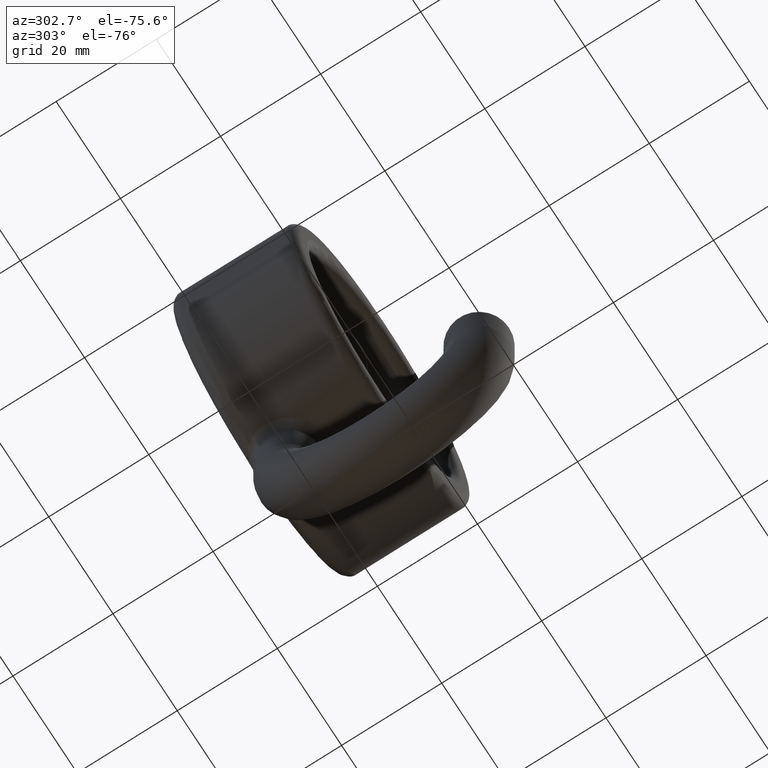
[diagram: clean part render]
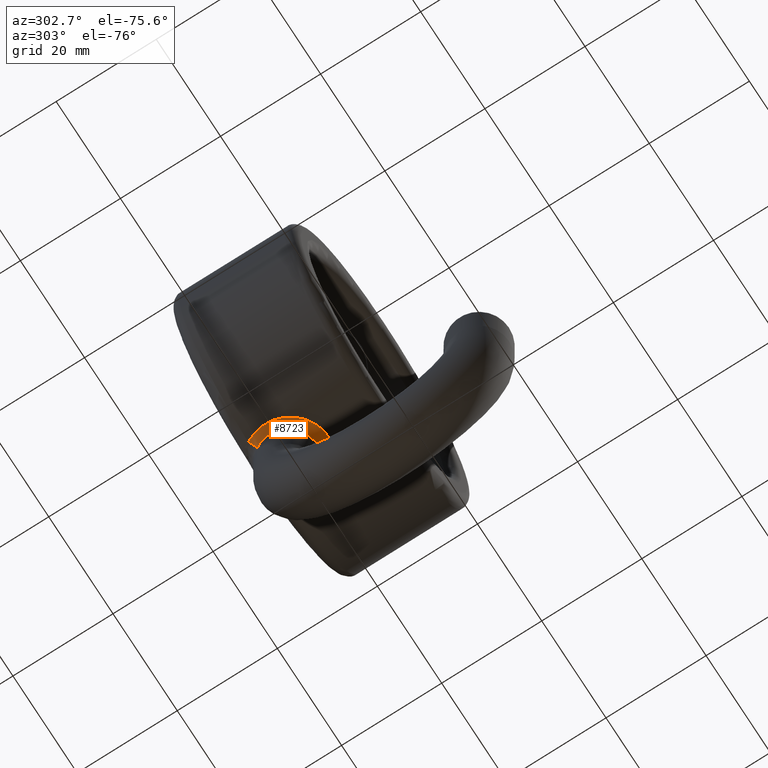
[diagram: same view with one face highlighted and labeled with its STEP entity id]
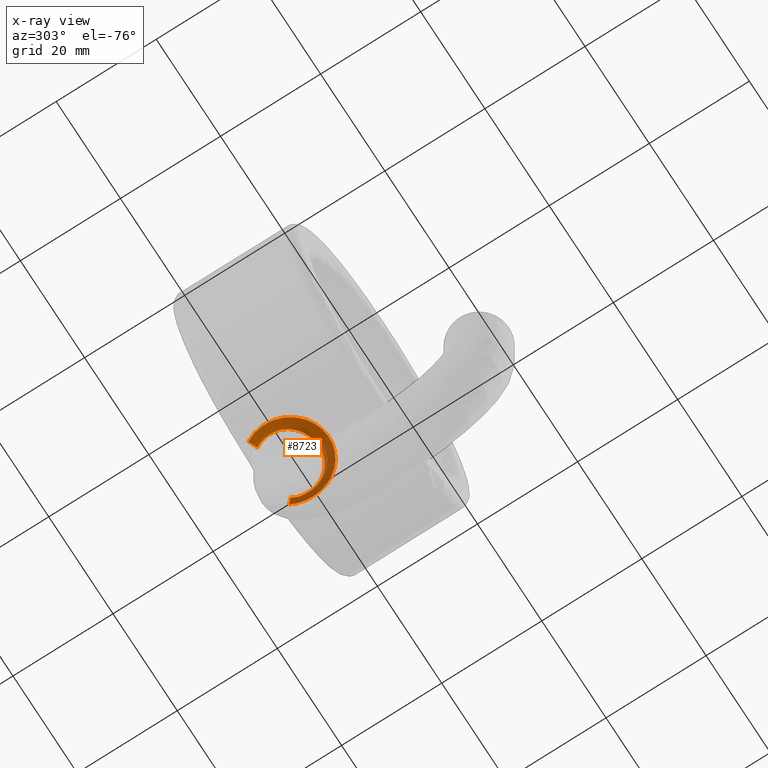
[diagram: x-ray of the same camera — body ghosted, the highlighted face saturated]
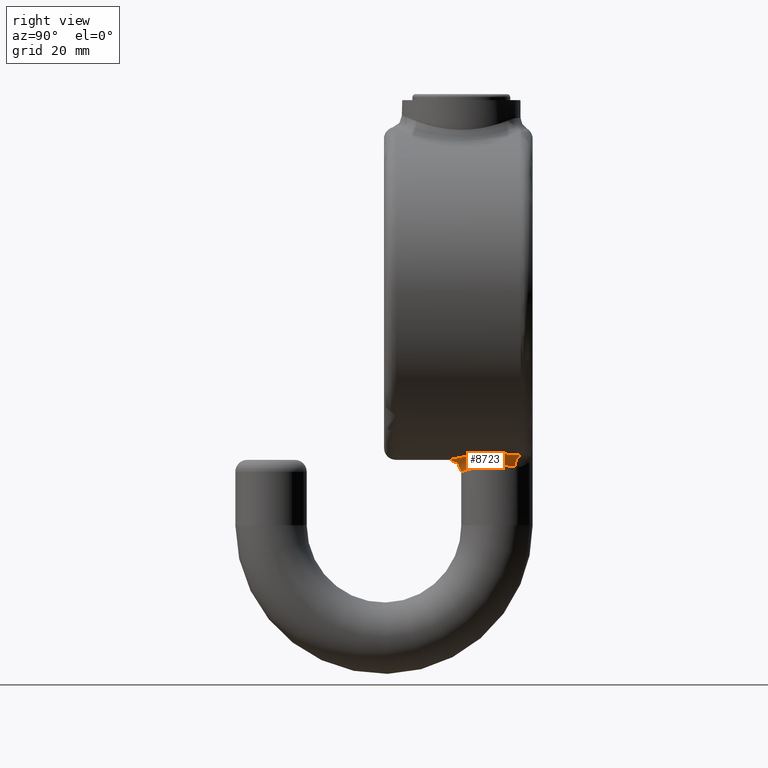
[diagram: same view with one face highlighted and labeled with its STEP entity id]
A machine part, auxiliary view. The second image highlights one B-rep face of the part: STEP entity #8723.
The next image is the same camera in x-ray: the body ghosted, the highlighted face saturated — about 43% of this face is hidden behind the body in this view.
A second angle (right view) of the same face is appended — the face is thin or edge-on in the first view.
In plain terms, the highlighted face is a freeform B-spline surface patch.
Its self-contained STEP definition (entity closure, byte-faithful):
#165 = CARTESIAN_POINT ( 'NONE',  ( 7.293453782078207936, 17.25176376930417987, -27.03355734972819846 ) ) ;
#209 = CARTESIAN_POINT ( 'NONE',  ( 5.459634448423971165, 21.54363574457639885, -29.10565353477162631 ) ) ;
#294 = EDGE_LOOP ( 'NONE', ( #11913, #1802, #5426, #3445 ) ) ;
#317 = CARTESIAN_POINT ( 'NONE',  ( -5.443572187908805482, 21.53704018001644371, -29.10909045536707040 ) ) ;
#358 = CARTESIAN_POINT ( 'NONE',  ( -5.635100950632663697, 16.92292083529806845, -29.04422818920297189 ) ) ;
#363 = CARTESIAN_POINT ( 'NONE',  ( -2.574354687052947455, 11.45773086027605991, -27.88862909661817469 ) ) ;
#392 = CARTESIAN_POINT ( 'NONE',  ( 4.926720680535845887, 15.53602277376585050, -29.27417673111907348 ) ) ;
#394 = CARTESIAN_POINT ( 'NONE',  ( 3.868412846397338178, 14.38355448956410321, -29.55758892746231581 ) ) ;
#430 = CARTESIAN_POINT ( 'NONE',  ( 5.862700851585689321, 20.30295769124808913, -28.96384595815565532 ) ) ;
#435 = CARTESIAN_POINT ( 'NONE',  ( 3.457792433212155458, 11.90101739961477456, -27.78711997128735334 ) ) ;
#468 = CARTESIAN_POINT ( 'NONE',  ( 5.722978064286947664, 17.17903476619397907, -29.01348430694911684 ) ) ;
#471 = CARTESIAN_POINT ( 'NONE',  ( -0.6535870045914439208, 11.02304985313175933, -27.99424057704830560 ) ) ;
#484 = CARTESIAN_POINT ( 'NONE',  ( 1.695702070834868680, 11.20070834829324191, -27.95049088203847631 ) ) ;
#518 = CARTESIAN_POINT ( 'NONE',  ( -3.039821569538214696, 13.81598341691321430, -27.85294643245917712 ) ) ;
#527 = CARTESIAN_POINT ( 'NONE',  ( -6.383213849309011145, 14.83546269897500203, -27.26315886592508164 ) ) ;
#565 = CARTESIAN_POINT ( 'NONE',  ( 7.067027759394608921, 16.39521986729781844, -27.09375678869072246 ) ) ;
#584 = CARTESIAN_POINT ( 'NONE',  ( 6.466323014923822221, 23.00000000000000000, -27.24310310274265845 ) ) ;
#606 = CARTESIAN_POINT ( 'NONE',  ( 7.035012031037140012, 21.76651027874031641, -27.10237742489288237 ) ) ;
#729 = CARTESIAN_POINT ( 'NONE',  ( -4.266983876723755564, 14.76734947838943945, -27.70245112561684309 ) ) ;
#775 = CARTESIAN_POINT ( 'NONE',  ( -6.000337331345121150, 19.52658411072648548, -28.91354014298450181 ) ) ;
#822 = CARTESIAN_POINT ( 'NONE',  ( -5.999612531030190432, 18.42825902939111415, -27.39197523611853313 ) ) ;
#861 = CARTESIAN_POINT ( 'NONE',  ( -4.425491374854803261, 14.94012282338943187, -29.41504002604188628 ) ) ;
#962 = DIRECTION ( 'NONE',  ( -0.4965156369922071877, 0.8599903100229292496, -0.1178511301977580444 ) ) ;
#1125 = CARTESIAN_POINT ( 'NONE',  ( 6.000183478053399355, 19.27608073344022444, -27.39185371851564099 ) ) ;
#1162 = CARTESIAN_POINT ( 'NONE',  ( 6.466323014923814227, 22.99999999999999289, -27.24310310274266556 ) ) ;
#1202 = CARTESIAN_POINT ( 'NONE',  ( 6.794227223935831006, 22.39148562223856587, -27.16527296256266055 ) ) ;
#1282 = CARTESIAN_POINT ( 'NONE',  ( -3.228946209124539113, 13.93616264887987910, -29.69103773681862180 ) ) ;
#1320 = CARTESIAN_POINT ( 'NONE',  ( -0.5219688193766695017, 13.01697998120310018, -29.99393828482211788 ) ) ;
#1323 = CARTESIAN_POINT ( 'NONE',  ( 0.2601218421557875415, 12.99991110962191598, -30.00003160541701064 ) ) ;
#1356 = CARTESIAN_POINT ( 'NONE',  ( 0.5314683492090009898, 13.01772873802755548, -29.99367131938786812 ) ) ;
#1360 = CARTESIAN_POINT ( 'NONE',  ( 3.679894078348206143, 14.22468606298808425, -27.78350837448174104 ) ) ;
#1366 = EDGE_CURVE ( 'NONE', #9026, #11128, #10677, .T. ) ;
#1397 = CARTESIAN_POINT ( 'NONE',  ( 5.999505928422954604, 18.46971593289539015, -28.91384685962595213 ) ) ;
#1402 = CARTESIAN_POINT ( 'NONE',  ( 4.300637403498426714, 12.42340013150870881, -27.67356097727958542 ) ) ;
#1412 = CARTESIAN_POINT ( 'NONE',  ( 7.463039001126629657, 19.42144532155057135, -26.98709062046592422 ) ) ;
#1438 = CARTESIAN_POINT ( 'NONE',  ( -5.196152422706635576, 22.00000000000000000, -29.18903903865284732 ) ) ;
#1440 = CARTESIAN_POINT ( 'NONE',  ( -0.3287903331582990862, 11.00011944723973834, -27.99997027086472912 ) ) ;
#1458 = FACE_OUTER_BOUND ( 'NONE', #294, .T. ) ;
#1478 = CARTESIAN_POINT ( 'NONE',  ( -4.057772092266803021, 14.57257837502476505, -29.50915596164536936 ) ) ;
#1489 = CARTESIAN_POINT ( 'NONE',  ( 6.695759149742988470, 15.44295002611112011, -27.18809278044705025 ) ) ;
#1536 = CARTESIAN_POINT ( 'NONE',  ( 0.3427970103387821821, 11.00014020038838858, -27.99996510568348995 ) ) ;
#1576 = CARTESIAN_POINT ( 'NONE',  ( -7.451463195290464192, 18.38672464199969170, -26.99031731290273584 ) ) ;
#1775 = CARTESIAN_POINT ( 'NONE',  ( -5.049671937213353168, 13.09677116658012963, -27.54187889783966625 ) ) ;
#1802 = ORIENTED_EDGE ( 'NONE', *, *, #12089, .F. ) ;
#1816 = CARTESIAN_POINT ( 'NONE',  ( -5.919048947959805851, 17.87011911950096632, -27.40945644297764971 ) ) ;
#1863 = CARTESIAN_POINT ( 'NONE',  ( -5.322933455337961917, 16.21902565031601640, -29.14894336379532902 ) ) ;
#2084 = CARTESIAN_POINT ( 'NONE',  ( 5.640347153424317916, 16.93723180270469086, -29.04241328959348323 ) ) ;
#2128 = CARTESIAN_POINT ( 'NONE',  ( 5.903120678234222041, 20.11228736642208759, -27.41235518726053755 ) ) ;
#2153 = CARTESIAN_POINT ( 'NONE',  ( -6.628558190079914425, 22.69892903627299674, -27.20459555670483809 ) ) ;
#2174 = CARTESIAN_POINT ( 'NONE',  ( 5.687595244651623361, 17.06505846391174686, -27.45655969080936387 ) ) ;
#2208 = CARTESIAN_POINT ( 'NONE',  ( 5.980859349052943585, 19.55591169043040267, -27.39598929812297001 ) ) ;
#2230 = VERTEX_POINT ( 'NONE', #5510 ) ;
#2249 = CARTESIAN_POINT ( 'NONE',  ( 5.459020781373340014, 21.54469864708703142, -29.10584774623014326 ) ) ;
#2252 = CARTESIAN_POINT ( 'NONE',  ( 7.296091807201866786, 20.73582900296816689, -27.03284511479121832 ) ) ;
#2286 = CARTESIAN_POINT ( 'NONE',  ( -0.2603440098277420844, 12.99989039600122176, -30.00003897030748945 ) ) ;
#2289 = CARTESIAN_POINT ( 'NONE',  ( -0.4781753560186310370, 13.01411968101816363, -27.99734997020524219 ) ) ;
#2323 = CARTESIAN_POINT ( 'NONE',  ( -4.911590503304184452, 15.54393842573454521, -29.27730512373636174 ) ) ;
#2327 = CARTESIAN_POINT ( 'NONE',  ( 5.739443970552001950, 13.83513537240765245, -27.40950139715871714 ) ) ;
#2365 = CARTESIAN_POINT ( 'NONE',  ( 5.319389917688081226, 16.21216578226565019, -29.15009998744893949 ) ) ;
#2367 = CARTESIAN_POINT ( 'NONE',  ( -1.905003893418053318, 13.28733934745857326, -27.94665609580564691 ) ) ;
#2377 = CARTESIAN_POINT ( 'NONE',  ( 7.319180741943925206, 17.38146571761371462, -27.02658022857978182 ) ) ;
#2402 = CARTESIAN_POINT ( 'NONE',  ( 1.313112720125813704, 13.13963400875872090, -29.95076139247484903 ) ) ;
#2405 = CARTESIAN_POINT ( 'NONE',  ( 0.3237071813494791228, 10.99988147968108798, -28.00002949843499422 ) ) ;
#2417 = CARTESIAN_POINT ( 'NONE',  ( 1.364747544355199960, 11.12624506618425002, -27.96877285801979696 ) ) ;
#2451 = CARTESIAN_POINT ( 'NONE',  ( 2.592867631151342334, 13.57926537799056987, -27.89410510373325280 ) ) ;
#2458 = CARTESIAN_POINT ( 'NONE',  ( -7.017975960293594717, 21.75307214057295724, -27.10653486965860282 ) ) ;
#2501 = CARTESIAN_POINT ( 'NONE',  ( 7.287145967829013138, 20.77691349126768117, -27.03525601382570542 ) ) ;
#2548 = CARTESIAN_POINT ( 'NONE',  ( -5.827064990781563480, 13.98583273883882150, -27.38765866042852792 ) ) ;
#2669 = CARTESIAN_POINT ( 'NONE',  ( -7.467086457668398403, 19.70211214763348195, -26.98597080011757043 ) ) ;
#2708 = CARTESIAN_POINT ( 'NONE',  ( -5.062747506385889551, 15.76951604397424234, -29.23123030213779217 ) ) ;
#2753 = CARTESIAN_POINT ( 'NONE',  ( -7.379488123246732201, 17.59525457527734815, -27.01062521508007919 ) ) ;
#2790 = EDGE_CURVE ( 'NONE', #2230, #9461, #5738, .T. ) ;
#2833 = CARTESIAN_POINT ( 'NONE',  ( -4.952771043232124804, 15.59623726764642093, -27.59350342147589075 ) ) ;
#2845 = DIRECTION ( 'NONE',  ( -0.8660254037844392627, -0.4999999999999989453, 0.000000000000000000 ) ) ;
#3057 = CARTESIAN_POINT ( 'NONE',  ( 5.196152422706636465, 21.99999999999999645, -29.18903903865285443 ) ) ;
#3096 = CARTESIAN_POINT ( 'NONE',  ( 7.123969036070517014, 16.57896585050606930, -27.07871407998287694 ) ) ;
#3135 = CARTESIAN_POINT ( 'NONE',  ( 5.999836802360762888, 18.73459072360726552, -28.91372479556810404 ) ) ;
#3174 = CARTESIAN_POINT ( 'NONE',  ( 5.914950507969984450, 20.04041209835238035, -28.94483996337467602 ) ) ;
#3213 = CARTESIAN_POINT ( 'NONE',  ( -5.316683424353600529, 16.20715266480470262, -29.15097246671296460 ) ) ;
#3216 = CARTESIAN_POINT ( 'NONE',  ( 7.445853883767930448, 19.69219371695156440, -26.99187290969192432 ) ) ;
#3247 = CARTESIAN_POINT ( 'NONE',  ( -4.593022254116919001, 15.13060347722686672, -29.36909040943969273 ) ) ;
#3249 = CARTESIAN_POINT ( 'NONE',  ( -3.231347752737105505, 13.93766315672027467, -29.69057993747435020 ) ) ;
#3282 = CARTESIAN_POINT ( 'NONE',  ( -5.432637133727284073, 16.43971205652422896, -29.11272685405917926 ) ) ;
#3286 = CARTESIAN_POINT ( 'NONE',  ( 1.624623366013650649, 11.18392407500078001, -27.95459440630300918 ) ) ;
#3324 = CARTESIAN_POINT ( 'NONE',  ( -6.001263251472154892, 19.51793655562585172, -28.91319855942888140 ) ) ;
#3327 = CARTESIAN_POINT ( 'NONE',  ( 0.2370008586809563000, 12.99992691217498475, -28.00001369573669052 ) ) ;
#3337 = CARTESIAN_POINT ( 'NONE',  ( 4.145499906535333068, 12.33680686451769937, -27.69290156166754002 ) ) ;
#3372 = CARTESIAN_POINT ( 'NONE',  ( -0.5252038429571800338, 13.01728738997720214, -29.99382918965161338 ) ) ;
#3381 = CARTESIAN_POINT ( 'NONE',  ( -6.771108938983845249, 22.38926835643694702, -27.16925289653157805 ) ) ;
#3409 = CARTESIAN_POINT ( 'NONE',  ( 2.778583205328258199, 13.67576304953150057, -29.77191425459894347 ) ) ;
#3410 =( BOUNDED_SURFACE ( )  B_SPLINE_SURFACE ( 3, 2, ( 
 ( #3057, #6933, #1162 ),
 ( #209, #4174, #1202 ),
 ( #5044, #6050, #7955 ),
 ( #11768, #6894, #2252 ),
 ( #3174, #2128, #5965 ),
 ( #8752, #2208, #3216 ),
 ( #10673, #1125, #8793 ),
 ( #3135, #11617, #8874 ),
 ( #7877, #8913, #9735 ),
 ( #9891, #4132, #5122 ),
 ( #10790, #5083, #165 ),
 ( #7798, #2174, #3096 ),
 ( #2084, #4012, #4964 ),
 ( #5926, #9773, #8831 ),
 ( #4048, #10710, #9812 ),
 ( #10746, #4329, #8036 ),
 ( #9931, #7048, #2327 ),
 ( #394, #1360, #9038 ),
 ( #7119, #6244, #1402 ),
 ( #3409, #2451, #435 ),
 ( #5236, #7997, #10945 ),
 ( #4250, #5318, #9122 ),
 ( #9999, #7160, #4212 ),
 ( #5196, #8999, #3286 ),
 ( #8112, #10083, #10870 ),
 ( #11022, #11857, #10982 ),
 ( #1323, #3327, #2405 ),
 ( #5276, #4372, #1440 ),
 ( #3372, #2289, #471 ),
 ( #5157, #8959, #6169 ),
 ( #8072, #6130, #6088 ),
 ( #9962, #2367, #363 ),
 ( #4287, #9077, #11813 ),
 ( #3249, #518, #7080 ),
 ( #11896, #6207, #10904 ),
 ( #7199, #10034, #11937 ),
 ( #1478, #8149, #1775 ),
 ( #861, #729, #9471 ),
 ( #8399, #12239, #7495 ),
 ( #11309, #3748, #10400 ),
 ( #2708, #2833, #6537 ),
 ( #1863, #8435, #12280 ),
 ( #3669, #3710, #12323 ),
 ( #9513, #5611, #11352 ),
 ( #6583, #9349, #12194 ),
 ( #8356, #1816, #2753 ),
 ( #10362, #822, #7453 ),
 ( #775, #9429, #2669 ),
 ( #10322, #7409, #4628 ),
 ( #3626, #9389, #6503 ),
 ( #4714, #10284, #5565 ),
 ( #3790, #4672, #5650 ),
 ( #11982, #7537, #8477 ),
 ( #4589, #8522, #6282 ) ),
 .UNSPECIFIED., .F., .F., .F. ) 
 B_SPLINE_SURFACE_WITH_KNOTS ( ( 4, 2, 2, 2, 2, 2, 2, 2, 2, 2, 2, 2, 2, 2, 2, 2, 2, 2, 2, 2, 2, 2, 2, 2, 2, 2, 4 ),
 ( 3, 3 ),
 ( 0.02641158128190437132, 0.02850361446183158343, 0.02954963105179519295, 0.03059564764175879900, 0.03164166423172240505, 0.03268768082168601458, 0.03373369741164962410, 0.03477971400161322668, 0.03687174718154043879, 0.03896378036146765089, 0.04000979695143125348, 0.04105581354139486300, 0.04210183013135847252, 0.04314784672132207510, 0.04419386331128567769, 0.04523987990124928721, 0.04733191308117649931, 0.04837792967114010190, 0.04942394626110371142, 0.05046996285106732094, 0.05151597944103092352, 0.05256199603099452611, 0.05360801262095813563, 0.05570004580088534774, 0.05779207898081255984, 0.05883809557077616936, 0.05988411216073977195 ),
 ( 0.000000000000000000, 1.000000000000000000 ),
 .UNSPECIFIED. ) 
 GEOMETRIC_REPRESENTATION_ITEM ( )  RATIONAL_B_SPLINE_SURFACE ( (
 ( 1.000000000000000000, 0.7745966692414834043, 1.000000000000000000),
 ( 1.000000000000000000, 0.7811434919228852358, 1.000000000000000000),
 ( 1.000000000000000000, 0.7864795854539188280, 1.000000000000000000),
 ( 1.000000000000000000, 0.7920209863173276466, 1.000000000000000000),
 ( 1.000000000000000000, 0.7934587082293425020, 1.000000000000000000),
 ( 1.000000000000000000, 0.7953537772215463209, 1.000000000000000000),
 ( 1.000000000000000000, 0.7958269185778533705, 1.000000000000000000),
 ( 1.000000000000000000, 0.7958178686886229203, 1.000000000000000000),
 ( 1.000000000000000000, 0.7953357230642141840, 1.000000000000000000),
 ( 1.000000000000000000, 0.7933990206599899064, 1.000000000000000000),
 ( 1.000000000000000000, 0.7919628509317698795, 1.000000000000000000),
 ( 1.000000000000000000, 0.7882647068485911790, 1.000000000000000000),
 ( 1.000000000000000000, 0.7860008466569524677, 1.000000000000000000),
 ( 1.000000000000000000, 0.7807339975862269688, 1.000000000000000000),
 ( 1.000000000000000000, 0.7777087046460274822, 1.000000000000000000),
 ( 1.000000000000000000, 0.7679478934105367083, 1.000000000000000000),
 ( 1.000000000000000000, 0.7604799479038143462, 1.000000000000000000),
 ( 1.000000000000000000, 0.7449648666367570948, 1.000000000000000000),
 ( 1.000000000000000000, 0.7372419463837994735, 1.000000000000000000),
 ( 1.000000000000000000, 0.7269233754708936956, 1.000000000000000000),
 ( 1.000000000000000000, 0.7236733339715653024, 1.000000000000000000),
 ( 1.000000000000000000, 0.7179508468900988039, 1.000000000000000000),
 ( 1.000000000000000000, 0.7154675182705720893, 1.000000000000000000),
 ( 1.000000000000000000, 0.7113940227073178857, 1.000000000000000000),
 ( 1.000000000000000000, 0.7098037098993240646, 1.000000000000000000),
 ( 1.000000000000000000, 0.7076507299684010599, 1.000000000000000000),
 ( 1.000000000000000000, 0.7071039876360916132, 1.000000000000000000),
 ( 1.000000000000000000, 0.7071095965847362663, 1.000000000000000000),
 ( 1.000000000000000000, 0.7076529608777745173, 1.000000000000000000),
 ( 1.000000000000000000, 0.7097849121715550380, 1.000000000000000000),
 ( 1.000000000000000000, 0.7113900348559557552, 1.000000000000000000),
 ( 1.000000000000000000, 0.7175706873049791934, 1.000000000000000000),
 ( 1.000000000000000000, 0.7234394718571259819, 1.000000000000000000),
 ( 1.000000000000000000, 0.7338211581499950453, 1.000000000000000000),
 ( 1.000000000000000000, 0.7375284647310829111, 1.000000000000000000),
 ( 1.000000000000000000, 0.7450636945675445100, 1.000000000000000000),
 ( 1.000000000000000000, 0.7489144868170403146, 1.000000000000000000),
 ( 1.000000000000000000, 0.7565887009387888273, 1.000000000000000000),
 ( 1.000000000000000000, 0.7604371988864470078, 1.000000000000000000),
 ( 1.000000000000000000, 0.7677931571670877364, 1.000000000000000000),
 ( 1.000000000000000000, 0.7712839363840520157, 1.000000000000000000),
 ( 1.000000000000000000, 0.7777448740965466900, 1.000000000000000000),
 ( 1.000000000000000000, 0.7807156298508668435, 1.000000000000000000),
 ( 1.000000000000000000, 0.7859932480124691700, 1.000000000000000000),
 ( 1.000000000000000000, 0.7882967212970168891, 1.000000000000000000),
 ( 1.000000000000000000, 0.7938406980602429330, 1.000000000000000000),
 ( 1.000000000000000000, 0.7958129379753068333, 1.000000000000000000),
 ( 1.000000000000000000, 0.7958318452760843043, 1.000000000000000000),
 ( 1.000000000000000000, 0.7938852935903746300, 1.000000000000000000),
 ( 1.000000000000000000, 0.7883491297728073555, 1.000000000000000000),
 ( 1.000000000000000000, 0.7860492645867123152, 1.000000000000000000),
 ( 1.000000000000000000, 0.7807939094672038394, 1.000000000000000000),
 ( 1.000000000000000000, 0.7778293005018306339, 1.000000000000000000),
 ( 1.000000000000000000, 0.7745966692414831822, 1.000000000000000000) ) ) 
 REPRESENTATION_ITEM ( '' )  SURFACE ( )  );
#3445 = ORIENTED_EDGE ( 'NONE', *, *, #7651, .F. ) ;
#3464 = CARTESIAN_POINT ( 'NONE',  ( -6.828526816694652446, 15.74567905874911133, -27.15485263686071704 ) ) ;
#3506 = CARTESIAN_POINT ( 'NONE',  ( 3.578377074242672595, 11.96959117593327449, -27.77187757235414978 ) ) ;
#3576 = CARTESIAN_POINT ( 'NONE',  ( -6.928203230275515878, 23.00000000000000000, -29.18903903865284732 ) ) ;
#3626 = CARTESIAN_POINT ( 'NONE',  ( -5.727754361166628172, 20.80603593462108236, -29.01180672518431791 ) ) ;
#3669 = CARTESIAN_POINT ( 'NONE',  ( -5.438550671375459444, 16.45227263899267456, -29.11076085230799748 ) ) ;
#3710 = CARTESIAN_POINT ( 'NONE',  ( -5.367164978109729923, 16.29836125551954495, -27.51888772754196566 ) ) ;
#3748 = CARTESIAN_POINT ( 'NONE',  ( -4.795043949576448306, 15.37717830120957885, -27.62025284927324265 ) ) ;
#3790 = CARTESIAN_POINT ( 'NONE',  ( -5.441576927535411556, 21.54120530931334798, -29.10975244187897815 ) ) ;
#4012 = CARTESIAN_POINT ( 'NONE',  ( 5.592523857216546546, 16.80482104622889850, -27.47556420327763860 ) ) ;
#4048 = CARTESIAN_POINT ( 'NONE',  ( 5.321526692706919803, 16.21618481133539191, -29.14940822663157149 ) ) ;
#4109 = CARTESIAN_POINT ( 'NONE',  ( -6.466323014923816004, 23.00000000000000000, -27.24310310274266556 ) ) ;
#4132 = CARTESIAN_POINT ( 'NONE',  ( 5.900665097744340670, 17.87411061651977917, -27.41286956952825449 ) ) ;
#4174 = CARTESIAN_POINT ( 'NONE',  ( 5.387006609744555696, 21.70295236587933729, -27.51651210742598508 ) ) ;
#4208 = CARTESIAN_POINT ( 'NONE',  ( -2.548926341979888210, 13.54315623613459429, -29.81311339333038291 ) ) ;
#4212 = CARTESIAN_POINT ( 'NONE',  ( 2.251604627520975122, 11.36448220197063108, -27.91109145310571549 ) ) ;
#4247 = CARTESIAN_POINT ( 'NONE',  ( -5.327638054355074537, 21.77226020551962549, -29.14742710906448409 ) ) ;
#4250 = CARTESIAN_POINT ( 'NONE',  ( 2.056428293375254679, 13.35731600866156832, -29.87620104903235685 ) ) ;
#4287 = CARTESIAN_POINT ( 'NONE',  ( -2.549886735277999250, 13.54348755219606915, -29.81299400775253261 ) ) ;
#4298 = CARTESIAN_POINT ( 'NONE',  ( 7.469515681122580020, 18.74194351709505568, -26.98529871576449324 ) ) ;
#4325 = CARTESIAN_POINT ( 'NONE',  ( -5.721527233553254987, 17.17439311758733567, -29.01399452588066197 ) ) ;
#4329 = CARTESIAN_POINT ( 'NONE',  ( 4.803262128897459071, 15.35622721933628299, -27.61996792587576621 ) ) ;
#4340 = CARTESIAN_POINT ( 'NONE',  ( -7.122574275397013821, 21.42489139715523905, -27.07907743921873234 ) ) ;
#4372 = CARTESIAN_POINT ( 'NONE',  ( -0.2407205573197246373, 13.00007365884419563, -27.99998619726152782 ) ) ;
#4384 = CARTESIAN_POINT ( 'NONE',  ( 6.833425445065767434, 15.75770029294603525, -27.15361550444997718 ) ) ;
#4430 = CARTESIAN_POINT ( 'NONE',  ( -0.6752136999415908614, 11.02447909941662196, -27.99388094282479855 ) ) ;
#4470 = CARTESIAN_POINT ( 'NONE',  ( -7.318296740822654911, 17.37688002354860473, -27.02682017971938677 ) ) ;
#4543 = DIRECTION ( 'NONE',  ( -0.4965156369922074098, -0.8599903100229291386, 0.1178511301977580861 ) ) ;
#4589 = CARTESIAN_POINT ( 'NONE',  ( -5.196152422706638241, 21.99999999999999289, -29.18903903865285088 ) ) ;
#4628 = CARTESIAN_POINT ( 'NONE',  ( -7.381488461269384516, 20.39358503975029180, -27.01007676589706463 ) ) ;
#4672 = CARTESIAN_POINT ( 'NONE',  ( -5.370534635811309521, 21.69485768353024824, -27.51825247480871184 ) ) ;
#4714 = CARTESIAN_POINT ( 'NONE',  ( -5.642164934373181673, 21.05778005036926714, -29.04178394884687364 ) ) ;
#4747 = B_SPLINE_CURVE_WITH_KNOTS ( 'NONE', 3,
 ( #11854, #2249, #5193, #430, #6166, #7117, #11809, #1397, #5154, #468, #8068, #6125, #2365, #392, #7078, #11932, #10979, #5273, #10942, #5232, #7006, #2402, #10900, #1356, #7995, #2286, #1320, #8996, #8909, #7043, #4208, #1282, #8032, #8110, #9886, #8955, #3247, #2323, #9995, #3213, #3282, #358, #4325, #9960, #11894, #3324, #6204, #7156, #9928, #317, #4247, #1438 ),
 .UNSPECIFIED., .F., .F.,
 ( 4, 2, 2, 2, 2, 2, 2, 2, 2, 2, 2, 2, 2, 2, 2, 2, 2, 2, 2, 2, 2, 2, 2, 2, 2, 4 ),
 ( 0.000000000000000000, 0.001574462525856539516, 0.002361693788784803745, 0.003148925051713067757, 0.004723387577569585806, 0.005510618840497845047, 0.006297850103426103421, 0.007872312629282632312, 0.009446775155139157734, 0.01023400641806742478, 0.01102123768099569009, 0.01180846894392395541, 0.01259570020685222072, 0.01338293146978048603, 0.01417016273270874961, 0.01574462525856527850, 0.01653185652149354382, 0.01731908778442180913, 0.01810631904735007444, 0.01889355031027833628, 0.01968078157320660160, 0.02046801283613486691, 0.02204247536199138366, 0.02361693788784790041, 0.02440416915077615184, 0.02519140041370440328 ),
 .UNSPECIFIED. ) ;
#4964 = CARTESIAN_POINT ( 'NONE',  ( 7.019098679939740570, 16.24964240352328559, -27.10625240336954889 ) ) ;
#5044 = CARTESIAN_POINT ( 'NONE',  ( 5.658917816716368954, 21.06202936945878790, -29.03626733692618345 ) ) ;
#5083 = CARTESIAN_POINT ( 'NONE',  ( 5.841468227392145884, 17.59923711193746243, -27.42525014542390238 ) ) ;
#5122 = CARTESIAN_POINT ( 'NONE',  ( 7.358141005110955035, 17.59577875613030784, -27.01591736712362746 ) ) ;
#5154 = CARTESIAN_POINT ( 'NONE',  ( 5.928079820521023890, 17.93630884666148262, -28.94064093601340559 ) ) ;
#5157 = CARTESIAN_POINT ( 'NONE',  ( -1.044870508066727766, 13.08586989725833405, -29.96963919320455716 ) ) ;
#5193 = CARTESIAN_POINT ( 'NONE',  ( 5.658321446034890734, 21.06379226057423537, -29.03647612723025162 ) ) ;
#5196 = CARTESIAN_POINT ( 'NONE',  ( 1.305500919121743708, 13.13794305620120717, -29.95135114942441490 ) ) ;
#5232 = CARTESIAN_POINT ( 'NONE',  ( 2.064173946728834697, 13.36015098565853876, -29.87524780693435034 ) ) ;
#5236 = CARTESIAN_POINT ( 'NONE',  ( 2.540926955913976659, 13.55826588699787827, -29.80985650341762749 ) ) ;
#5273 = CARTESIAN_POINT ( 'NONE',  ( 2.785285195351212106, 13.67929631536519430, -29.77079161049525169 ) ) ;
#5276 = CARTESIAN_POINT ( 'NONE',  ( -0.2642065177164464873, 13.00008958556870198, -29.99996814740411821 ) ) ;
#5286 = CARTESIAN_POINT ( 'NONE',  ( 4.414920290099451528, 12.53873480418572761, -27.65096369776539476 ) ) ;
#5318 = CARTESIAN_POINT ( 'NONE',  ( 1.897999355314167413, 13.30023523915423844, -27.94433848803763709 ) ) ;
#5328 = CARTESIAN_POINT ( 'NONE',  ( -3.279425451116611878, 11.77717457944653567, -27.81332283924696469 ) ) ;
#5373 = CARTESIAN_POINT ( 'NONE',  ( 7.377397889686702293, 17.71975332466233510, -27.01065572168746343 ) ) ;
#5426 = ORIENTED_EDGE ( 'NONE', *, *, #2790, .F. ) ;
#5510 = CARTESIAN_POINT ( 'NONE',  ( -5.196152422706635576, 22.00000000000000000, -29.18903903865284732 ) ) ;
#5565 = CARTESIAN_POINT ( 'NONE',  ( -7.021360806902323226, 21.74370673371038620, -27.10566501869208267 ) ) ;
#5611 = CARTESIAN_POINT ( 'NONE',  ( -5.592203900872878108, 16.80394836995740349, -27.47562815300552685 ) ) ;
#5650 = CARTESIAN_POINT ( 'NONE',  ( -6.771740176806148703, 22.38827374586643515, -27.16910227931871091 ) ) ;
#5738 = CIRCLE ( 'NONE', #11554, 2.000000000000000888 ) ;
#5926 = CARTESIAN_POINT ( 'NONE',  ( 5.439259314530172418, 16.45382900098766044, -29.11052408557670290 ) ) ;
#5965 = CARTESIAN_POINT ( 'NONE',  ( 7.360827298579646794, 20.38721613110077513, -27.01518396590827464 ) ) ;
#6050 = CARTESIAN_POINT ( 'NONE',  ( 5.612809962373903616, 21.19758568885773542, -27.47179192176904294 ) ) ;
#6088 = CARTESIAN_POINT ( 'NONE',  ( -1.624488128128689146, 11.18373467029573298, -27.95463775579004206 ) ) ;
#6125 = CARTESIAN_POINT ( 'NONE',  ( 5.437134837539640664, 16.44931747537783551, -29.11123045234744922 ) ) ;
#6130 = CARTESIAN_POINT ( 'NONE',  ( -1.194690986001341049, 13.11399556061049587, -27.97869940091356256 ) ) ;
#6166 = CARTESIAN_POINT ( 'NONE',  ( 5.914889891226759566, 20.04090332682922693, -28.94486214684280867 ) ) ;
#6169 = CARTESIAN_POINT ( 'NONE',  ( -1.300283298904974405, 11.11449319651562462, -27.97166324695078288 ) ) ;
#6178 = CARTESIAN_POINT ( 'NONE',  ( 6.466323014923822221, 23.00000000000000000, -27.24310310274265845 ) ) ;
#6204 = CARTESIAN_POINT ( 'NONE',  ( -5.932904021787967608, 20.03775681621936755, -28.93887163087854830 ) ) ;
#6207 = CARTESIAN_POINT ( 'NONE',  ( -3.259554065142403978, 13.95067008908532458, -27.83002488583105105 ) ) ;
#6217 = CARTESIAN_POINT ( 'NONE',  ( -5.164718943089621206, 13.21201624644552375, -27.52050940253934286 ) ) ;
#6244 = CARTESIAN_POINT ( 'NONE',  ( 3.258363948537136956, 13.93174098299486907, -27.83281975374710981 ) ) ;
#6254 = CARTESIAN_POINT ( 'NONE',  ( 6.229222863993264525, 14.53540598877953549, -27.30016668500277888 ) ) ;
#6282 = CARTESIAN_POINT ( 'NONE',  ( -6.466323014923815116, 22.99999999999998934, -27.24310310274266200 ) ) ;
#6294 = CARTESIAN_POINT ( 'NONE',  ( 0.6875862242348920184, 11.02557803277033877, -27.99360670273786766 ) ) ;
#6334 = CARTESIAN_POINT ( 'NONE',  ( 4.926550904608840042, 12.97825509276229639, -27.56440477803521105 ) ) ;
#6503 = CARTESIAN_POINT ( 'NONE',  ( -7.127872093712252166, 21.40804791276198671, -27.07768627701700126 ) ) ;
#6537 = CARTESIAN_POINT ( 'NONE',  ( -6.300308008027777795, 14.69268805862488136, -27.28248161561743501 ) ) ;
#6583 = CARTESIAN_POINT ( 'NONE',  ( -5.725807612172308936, 17.18790502383249930, -29.01249037628615923 ) ) ;
#6894 = CARTESIAN_POINT ( 'NONE',  ( 5.843871499034464456, 20.39088212147937185, -27.42475341427555691 ) ) ;
#6914 = CARTESIAN_POINT ( 'NONE',  ( -6.466323014923816004, 23.00000000000000000, -27.24310310274266556 ) ) ;
#6933 = CARTESIAN_POINT ( 'NONE',  ( 5.099927377841698473, 22.16666666666666075, -27.56742575872769763 ) ) ;
#7006 = CARTESIAN_POINT ( 'NONE',  ( 1.817163977445105383, 13.27583458955547435, -29.90389765271776668 ) ) ;
#7043 = CARTESIAN_POINT ( 'NONE',  ( -2.068170661960317958, 13.34304932969247304, -29.88075722986236826 ) ) ;
#7048 = CARTESIAN_POINT ( 'NONE',  ( 4.459547766181160888, 14.94518304845906975, -27.67587866272886998 ) ) ;
#7078 = CARTESIAN_POINT ( 'NONE',  ( 4.611546819153766741, 15.12604704746419415, -29.36742573206846174 ) ) ;
#7080 = CARTESIAN_POINT ( 'NONE',  ( -4.021232758782259609, 12.25021754257194040, -27.71120794142535715 ) ) ;
#7117 = CARTESIAN_POINT ( 'NONE',  ( 5.983358195435688032, 19.51848516493074825, -28.91983355643049336 ) ) ;
#7119 = CARTESIAN_POINT ( 'NONE',  ( 3.455869341959968200, 14.06755009899069542, -29.65024390493170969 ) ) ;
#7156 = CARTESIAN_POINT ( 'NONE',  ( -5.729793281802646021, 20.79959475525705415, -29.01108994667383811 ) ) ;
#7160 = CARTESIAN_POINT ( 'NONE',  ( 1.664998674380701926, 13.22867383032519406, -27.95750013695121083 ) ) ;
#7170 = CARTESIAN_POINT ( 'NONE',  ( -4.924273491086897714, 12.97611706760642392, -27.56481247882969399 ) ) ;
#7199 = CARTESIAN_POINT ( 'NONE',  ( -3.862780516323144120, 14.40145830835777652, -29.55590141291191486 ) ) ;
#7207 = CARTESIAN_POINT ( 'NONE',  ( -4.412476552389074769, 12.53681877057044680, -27.65135452527928095 ) ) ;
#7251 = CARTESIAN_POINT ( 'NONE',  ( 7.352015525370615201, 20.43777635034073015, -27.01758563140093372 ) ) ;
#7291 = CARTESIAN_POINT ( 'NONE',  ( 6.790775794950460131, 22.39789067893237728, -27.16609218108554913 ) ) ;
#7409 = CARTESIAN_POINT ( 'NONE',  ( -5.920880135690783419, 20.12097106520622702, -27.40907110542481817 ) ) ;
#7453 = CARTESIAN_POINT ( 'NONE',  ( -7.466243833717123302, 18.28767534322664545, -26.98620394213632423 ) ) ;
#7495 = CARTESIAN_POINT ( 'NONE',  ( -5.723531581493255693, 13.85062420450759468, -27.40953130379110902 ) ) ;
#7537 = CARTESIAN_POINT ( 'NONE',  ( -5.242295854484277484, 21.93670123914414205, -27.54217663528038429 ) ) ;
#7651 = EDGE_CURVE ( 'NONE', #9026, #2230, #4747, .T. ) ;
#7679 = B_SPLINE_CURVE_WITH_KNOTS ( 'NONE', 3,
 ( #6914, #2153, #3381, #2458, #4340, #11073, #8080, #8236, #1576, #8195, #4470, #11863, #11033, #3464, #10131, #527, #8123, #2548, #11947, #6217, #7170, #7207, #11992, #5328, #10989, #10092, #12030, #4430, #8158, #1536, #6294, #2417, #484, #9178, #9132, #9214, #3506, #3337, #5286, #6334, #10170, #10008, #6254, #1489, #4384, #565, #11116, #2377, #5373, #9085, #4298, #1412, #10956, #7251, #2501, #606, #7291, #6178 ),
 .UNSPECIFIED., .F., .F.,
 ( 4, 2, 2, 2, 2, 2, 2, 2, 2, 2, 2, 2, 2, 2, 2, 2, 2, 2, 2, 2, 2, 2, 2, 2, 2, 2, 2, 2, 4 ),
 ( 0.000000000000000000, 0.001027550595449866185, 0.002055101190899732370, 0.004110202381799464739, 0.005137752977249325503, 0.006165303572699185400, 0.007192854168149047031, 0.008220404763598906928, 0.009247955359048768559, 0.01027550595449862846, 0.01130305654994849009, 0.01233060714539834998, 0.01438570833629807325, 0.01541325893174793141, 0.01644080952719779304, 0.01746836012264765120, 0.01849591071809751283, 0.01952346131354737446, 0.02055101190899723609, 0.02157856250444710119, 0.02260611309989696283, 0.02466121429079668609, 0.02568876488624654772, 0.02671631548169640241, 0.02774386607714626057, 0.02877141667259612220, 0.02979896726804598037, 0.03082651786349583853, 0.03288161905439556526 ),
 .UNSPECIFIED. ) ;
#7798 = CARTESIAN_POINT ( 'NONE',  ( 5.724617975271938164, 17.18422438790757312, -29.01290794265404926 ) ) ;
#7877 = CARTESIAN_POINT ( 'NONE',  ( 5.982630904044172304, 18.47236967707807764, -28.92010261070798549 ) ) ;
#7955 = CARTESIAN_POINT ( 'NONE',  ( 7.042208839247070529, 21.74937249277630258, -27.10051618146908581 ) ) ;
#7995 = CARTESIAN_POINT ( 'NONE',  ( 0.2653716978425068596, 13.00011065723410653, -29.99996065520885224 ) ) ;
#7997 = CARTESIAN_POINT ( 'NONE',  ( 2.361973830688605780, 13.47548285389991563, -27.91264958575333921 ) ) ;
#8032 = CARTESIAN_POINT ( 'NONE',  ( -3.447353721508566782, 14.08238340422928481, -29.64708531589628393 ) ) ;
#8036 = CARTESIAN_POINT ( 'NONE',  ( 6.132998065364408724, 14.38409847572046374, -27.32212918619989495 ) ) ;
#8068 = CARTESIAN_POINT ( 'NONE',  ( 5.638476375036752586, 16.93215069428342545, -29.04305990269346793 ) ) ;
#8072 = CARTESIAN_POINT ( 'NONE',  ( -1.305392245883533864, 13.13780100242441762, -29.95139759521596190 ) ) ;
#8080 = CARTESIAN_POINT ( 'NONE',  ( -7.460525721011888045, 19.75950706529770073, -26.98778598885740010 ) ) ;
#8110 = CARTESIAN_POINT ( 'NONE',  ( -3.858648456115508996, 14.39804033521414794, -29.55685347470261704 ) ) ;
#8112 = CARTESIAN_POINT ( 'NONE',  ( 1.048780682152264276, 13.08647656342037813, -29.96942572470812038 ) ) ;
#8123 = CARTESIAN_POINT ( 'NONE',  ( -6.210485540577873387, 14.54539208038565512, -27.30326725242257169 ) ) ;
#8149 = CARTESIAN_POINT ( 'NONE',  ( -3.881460575592953433, 14.41083885287753397, -27.75569314618374506 ) ) ;
#8158 = CARTESIAN_POINT ( 'NONE',  ( -0.3370727083068624230, 10.99986097510872618, -28.00003460174835723 ) ) ;
#8195 = CARTESIAN_POINT ( 'NONE',  ( -7.375965612219722800, 17.71113522925533346, -27.01104706762212615 ) ) ;
#8236 = CARTESIAN_POINT ( 'NONE',  ( -7.469273535650505558, 18.72942977634203388, -26.98536570074960750 ) ) ;
#8259 = AXIS2_PLACEMENT_3D ( 'NONE', #9576, #962, #2845 ) ;
#8356 = CARTESIAN_POINT ( 'NONE',  ( -5.929945813100545138, 17.94644093153790010, -28.93995558796611078 ) ) ;
#8399 = CARTESIAN_POINT ( 'NONE',  ( -4.599266449561388193, 15.13796815322017864, -29.36735496796819689 ) ) ;
#8435 = CARTESIAN_POINT ( 'NONE',  ( -5.238613956290113727, 16.05676840413358164, -27.54284952722449020 ) ) ;
#8477 = CARTESIAN_POINT ( 'NONE',  ( -6.628242284027906273, 22.69951528484341097, -27.20467053900648580 ) ) ;
#8522 = CARTESIAN_POINT ( 'NONE',  ( -5.099927377841698473, 22.16666666666665719, -27.56742575872769763 ) ) ;
#8723 = ADVANCED_FACE ( 'NONE', ( #1458 ), #3410, .F. ) ;
#8752 = CARTESIAN_POINT ( 'NONE',  ( 5.983275442130747024, 19.51914528768687873, -28.91986383191125398 ) ) ;
#8793 = CARTESIAN_POINT ( 'NONE',  ( 7.466866894130811616, 19.34397144327954621, -26.98603155021340427 ) ) ;
#8831 = CARTESIAN_POINT ( 'NONE',  ( 6.768856035736958709, 15.60510533473318162, -27.16982248012262602 ) ) ;
#8874 = CARTESIAN_POINT ( 'NONE',  ( 7.466463576191237017, 18.64612096481014447, -26.98614314253131141 ) ) ;
#8909 = CARTESIAN_POINT ( 'NONE',  ( -1.303858333107546397, 13.13744435928257914, -29.95152155867950938 ) ) ;
#8913 = CARTESIAN_POINT ( 'NONE',  ( 5.980121514008692962, 18.43500169677561473, -27.39614710038677003 ) ) ;
#8955 = CARTESIAN_POINT ( 'NONE',  ( -4.419734927082389575, 14.93392384933337880, -29.41657260330818247 ) ) ;
#8959 = CARTESIAN_POINT ( 'NONE',  ( -0.9546327165035310980, 13.07093114901479325, -27.98673601825150570 ) ) ;
#8996 = CARTESIAN_POINT ( 'NONE',  ( -1.042764926121654945, 13.08547370429579715, -29.96977827489904556 ) ) ;
#8999 = CARTESIAN_POINT ( 'NONE',  ( 1.194823811978054096, 13.11412440946510571, -27.97867610933160165 ) ) ;
#9026 = VERTEX_POINT ( 'NONE', #11848 ) ;
#9038 = CARTESIAN_POINT ( 'NONE',  ( 4.814024875096674094, 12.84473932002648944, -27.58708299972836997 ) ) ;
#9077 = CARTESIAN_POINT ( 'NONE',  ( -2.363870949134365240, 13.45799523898772421, -27.91519094503542675 ) ) ;
#9085 = CARTESIAN_POINT ( 'NONE',  ( 7.452641216768840948, 18.40161207193921200, -26.98999186795727923 ) ) ;
#9122 = CARTESIAN_POINT ( 'NONE',  ( 2.559110765210300897, 11.47642134461209373, -27.88445431259261298 ) ) ;
#9132 = CARTESIAN_POINT ( 'NONE',  ( 2.659646005984042993, 11.51601241691829181, -27.87513247234407743 ) ) ;
#9178 = CARTESIAN_POINT ( 'NONE',  ( 2.343152725329193942, 11.39558786878227181, -27.90367325937093312 ) ) ;
#9214 = CARTESIAN_POINT ( 'NONE',  ( 3.278159512693863409, 11.80319095559914722, -27.80917829489416349 ) ) ;
#9349 = CARTESIAN_POINT ( 'NONE',  ( -5.688935606483212837, 17.06893781333703330, -27.45629085889694920 ) ) ;
#9389 = CARTESIAN_POINT ( 'NONE',  ( -5.691129430632241082, 20.92467438940644797, -27.45585059169800957 ) ) ;
#9429 = CARTESIAN_POINT ( 'NONE',  ( -6.000384672298377353, 19.56353060244610020, -27.39181089730469054 ) ) ;
#9461 = VERTEX_POINT ( 'NONE', #4109 ) ;
#9471 = CARTESIAN_POINT ( 'NONE',  ( -5.507278155204647696, 13.58683043130546331, -27.45403735733511041 ) ) ;
#9513 = CARTESIAN_POINT ( 'NONE',  ( -5.640064366320554967, 16.93640554979789670, -29.04251231586045989 ) ) ;
#9576 = CARTESIAN_POINT ( 'NONE',  ( 6.928203230275523872, 23.00000000000000000, -29.18903903865284732 ) ) ;
#9735 = CARTESIAN_POINT ( 'NONE',  ( 7.445051792092705512, 18.29649290271130369, -26.99209576989909465 ) ) ;
#9773 = CARTESIAN_POINT ( 'NONE',  ( 5.367955335080524470, 16.29998280522023535, -27.51873824443644168 ) ) ;
#9812 = CARTESIAN_POINT ( 'NONE',  ( 6.622344328386987833, 15.28824641526997929, -27.20611434458384181 ) ) ;
#9886 = CARTESIAN_POINT ( 'NONE',  ( -4.053048676345412105, 14.56831538623668010, -29.51030393603952362 ) ) ;
#9891 = CARTESIAN_POINT ( 'NONE',  ( 5.912791879423054731, 17.94683406705312478, -28.94562575038778718 ) ) ;
#9928 = CARTESIAN_POINT ( 'NONE',  ( -5.644528398511869938, 21.05142638141980171, -29.04096868873840265 ) ) ;
#9931 = CARTESIAN_POINT ( 'NONE',  ( 4.612053190284634674, 15.12635152976150366, -29.36732292634527752 ) ) ;
#9960 = CARTESIAN_POINT ( 'NONE',  ( -5.927648267104236091, 17.93330251940288278, -28.94080419189138809 ) ) ;
#9962 = CARTESIAN_POINT ( 'NONE',  ( -2.068677873393020228, 13.34329814580179452, -29.88067403263763211 ) ) ;
#9995 = CARTESIAN_POINT ( 'NONE',  ( -5.056160283637329833, 15.75926519772563950, -29.23325848513975345 ) ) ;
#9999 = CARTESIAN_POINT ( 'NONE',  ( 1.809325147111437326, 13.27336165152735248, -29.90474084279921385 ) ) ;
#10008 = CARTESIAN_POINT ( 'NONE',  ( 5.849323727217107027, 13.97846512894260940, -27.38609768692519708 ) ) ;
#10034 = CARTESIAN_POINT ( 'NONE',  ( -3.679612320033430528, 14.24790865605198675, -27.78144438747603218 ) ) ;
#10083 = CARTESIAN_POINT ( 'NONE',  ( 0.9582192915821529100, 13.07143393123517328, -27.98664217164118995 ) ) ;
#10092 = CARTESIAN_POINT ( 'NONE',  ( -1.685414649777058127, 11.19798114479113771, -27.95115208994422318 ) ) ;
#10131 = CARTESIAN_POINT ( 'NONE',  ( -6.692236838838143242, 15.43560524153810753, -27.18895394250351671 ) ) ;
#10170 = CARTESIAN_POINT ( 'NONE',  ( 5.170128588865062547, 13.21744189985404105, -27.51950224877804985 ) ) ;
#10284 = CARTESIAN_POINT ( 'NONE',  ( -5.594566502883921544, 21.18993922823846887, -27.47516124684077710 ) ) ;
#10322 = CARTESIAN_POINT ( 'NONE',  ( -5.931553227510045545, 20.04518877971353064, -28.93936796384321042 ) ) ;
#10362 = CARTESIAN_POINT ( 'NONE',  ( -5.999660224232530759, 18.46575650741861097, -28.91378993800181618 ) ) ;
#10400 = CARTESIAN_POINT ( 'NONE',  ( -6.120400391568010079, 14.40433860513163822, -27.32365127695691598 ) ) ;
#10673 = CARTESIAN_POINT ( 'NONE',  ( 6.000160897005168970, 19.25797858245999805, -28.91360523237266023 ) ) ;
#10677 = CIRCLE ( 'NONE', #8259, 1.999999999999999112 ) ;
#10710 = CARTESIAN_POINT ( 'NONE',  ( 5.237043434910844120, 16.05381497945369773, -27.54314234960617469 ) ) ;
#10746 = CARTESIAN_POINT ( 'NONE',  ( 4.928302016304506594, 15.53807385702453203, -29.27370984177355240 ) ) ;
#10790 = CARTESIAN_POINT ( 'NONE',  ( 5.860811075026144401, 17.68882282695011199, -28.96452573203638892 ) ) ;
#10870 = CARTESIAN_POINT ( 'NONE',  ( 1.305149293391796972, 11.11530208412790977, -27.97146400953762324 ) ) ;
#10900 = CARTESIAN_POINT ( 'NONE',  ( 1.056072686478548128, 13.08774674604459065, -29.96897947755050140 ) ) ;
#10904 = CARTESIAN_POINT ( 'NONE',  ( -4.293734002313295939, 12.44589189584192646, -27.67004697442050443 ) ) ;
#10942 = CARTESIAN_POINT ( 'NONE',  ( 2.548157756389532569, 13.56165438433025727, -29.80875557771224749 ) ) ;
#10945 = CARTESIAN_POINT ( 'NONE',  ( 3.162042433905186467, 11.74435451626716365, -27.82253273636070645 ) ) ;
#10956 = CARTESIAN_POINT ( 'NONE',  ( 7.439685789872521937, 19.76061562361129731, -26.99357592063974209 ) ) ;
#10979 = CARTESIAN_POINT ( 'NONE',  ( 3.460511053835228612, 14.07093634421299377, -29.64924408956626323 ) ) ;
#10982 = CARTESIAN_POINT ( 'NONE',  ( 0.6537398959148214006, 11.02295156713566016, -27.99426437082047769 ) ) ;
#10989 = CARTESIAN_POINT ( 'NONE',  ( -2.666603758907156507, 11.49221819421201651, -27.88044704054236433 ) ) ;
#11022 = CARTESIAN_POINT ( 'NONE',  ( 0.5253267021119829572, 13.01721367502729620, -29.99385468281841227 ) ) ;
#11033 = CARTESIAN_POINT ( 'NONE',  ( -7.064232730325413989, 16.38628784330920851, -27.09449051279131737 ) ) ;
#11073 = CARTESIAN_POINT ( 'NONE',  ( -7.373617742064277891, 20.43329798287786048, -27.01221498627840845 ) ) ;
#11116 = CARTESIAN_POINT ( 'NONE',  ( 7.164075039567588732, 16.71998474661208078, -27.06810806858408114 ) ) ;
#11128 = VERTEX_POINT ( 'NONE', #584 ) ;
#11186 = DIRECTION ( 'NONE',  ( 0.8660254037844385966, -0.5000000000000002220, 0.000000000000000000 ) ) ;
#11309 = CARTESIAN_POINT ( 'NONE',  ( -4.918178885934272770, 15.55325395400924648, -29.27534065426182863 ) ) ;
#11352 = CARTESIAN_POINT ( 'NONE',  ( -7.018746766587240060, 16.24854073321147396, -27.10634482790752031 ) ) ;
#11554 = AXIS2_PLACEMENT_3D ( 'NONE', #3576, #4543, #11186 ) ;
#11617 = CARTESIAN_POINT ( 'NONE',  ( 5.999813896315194128, 18.71596393582643358, -27.39193237850425788 ) ) ;
#11768 = CARTESIAN_POINT ( 'NONE',  ( 5.862930916769371059, 20.30187175228784469, -28.96376262317165384 ) ) ;
#11809 = CARTESIAN_POINT ( 'NONE',  ( 6.000243087673633902, 19.25671196519946093, -28.91357491110592548 ) ) ;
#11813 = CARTESIAN_POINT ( 'NONE',  ( -3.173192382038231951, 11.72465006903827067, -27.82546107433711313 ) ) ;
#11848 = CARTESIAN_POINT ( 'NONE',  ( 5.196152422706636465, 21.99999999999999645, -29.18903903865284732 ) ) ;
#11854 = CARTESIAN_POINT ( 'NONE',  ( 5.196152422706636465, 21.99999999999999645, -29.18903903865284732 ) ) ;
#11857 = CARTESIAN_POINT ( 'NONE',  ( 0.4782741680506589765, 13.01405668401769589, -27.99736165318888226 ) ) ;
#11863 = CARTESIAN_POINT ( 'NONE',  ( -7.162821309998276931, 16.71546494369031066, -27.06844042597683497 ) ) ;
#11894 = CARTESIAN_POINT ( 'NONE',  ( -5.998702030323558532, 18.45319762206466763, -28.91414342779985702 ) ) ;
#11896 = CARTESIAN_POINT ( 'NONE',  ( -3.450321966188480083, 14.08441892176574051, -29.64647890080006931 ) ) ;
#11913 = ORIENTED_EDGE ( 'NONE', *, *, #1366, .T. ) ;
#11932 = CARTESIAN_POINT ( 'NONE',  ( 3.871226004285563516, 14.38616376889563320, -29.55689582968349427 ) ) ;
#11937 = CARTESIAN_POINT ( 'NONE',  ( -4.807015753701170624, 12.86861107765609091, -27.58550798504401769 ) ) ;
#11947 = CARTESIAN_POINT ( 'NONE',  ( -5.615515485942617957, 13.71587023271467132, -27.43207511952940081 ) ) ;
#11982 = CARTESIAN_POINT ( 'NONE',  ( -5.326265254588333775, 21.77463796446422606, -29.14786156538095696 ) ) ;
#11992 = CARTESIAN_POINT ( 'NONE',  ( -4.140069952811508358, 12.33272581453553407, -27.69374858064955447 ) ) ;
#12030 = CARTESIAN_POINT ( 'NONE',  ( -1.347927380230866001, 11.12303565504108782, -27.96956159040147227 ) ) ;
#12089 = EDGE_CURVE ( 'NONE', #9461, #11128, #7679, .T. ) ;
#12194 = CARTESIAN_POINT ( 'NONE',  ( -7.125449472786956839, 16.58387336516326016, -27.07832435137789773 ) ) ;
#12239 = CARTESIAN_POINT ( 'NONE',  ( -4.452000941151540658, 14.96208218286316161, -27.67478567690262992 ) ) ;
#12280 = CARTESIAN_POINT ( 'NONE',  ( -6.624094966561904663, 15.29203420042879458, -27.20568047258681332 ) ) ;
#12323 = CARTESIAN_POINT ( 'NONE',  ( -6.767974169212244817, 15.60303018517596030, -27.17004346238304180 ) ) ;